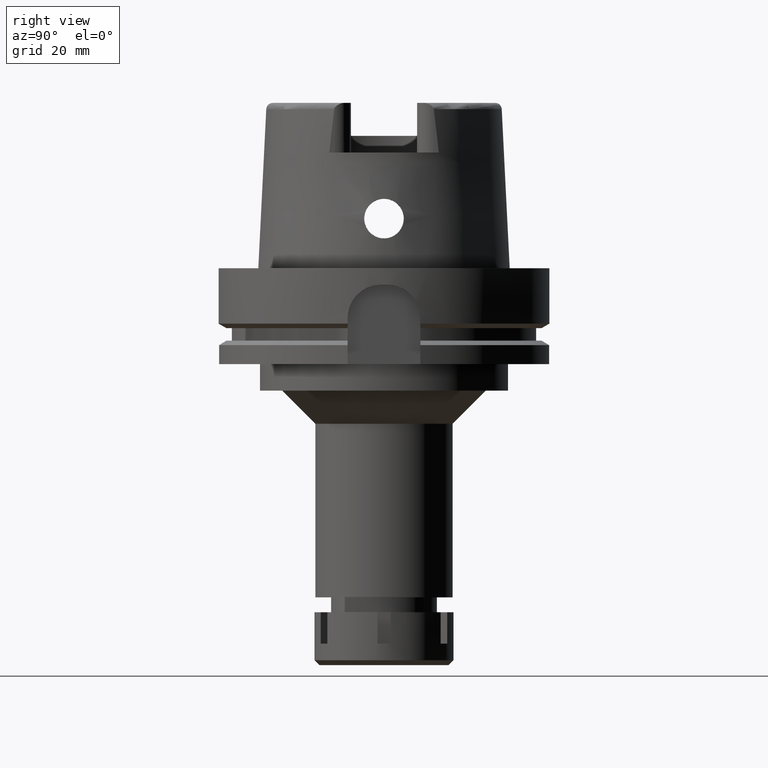
[diagram: clean part render]
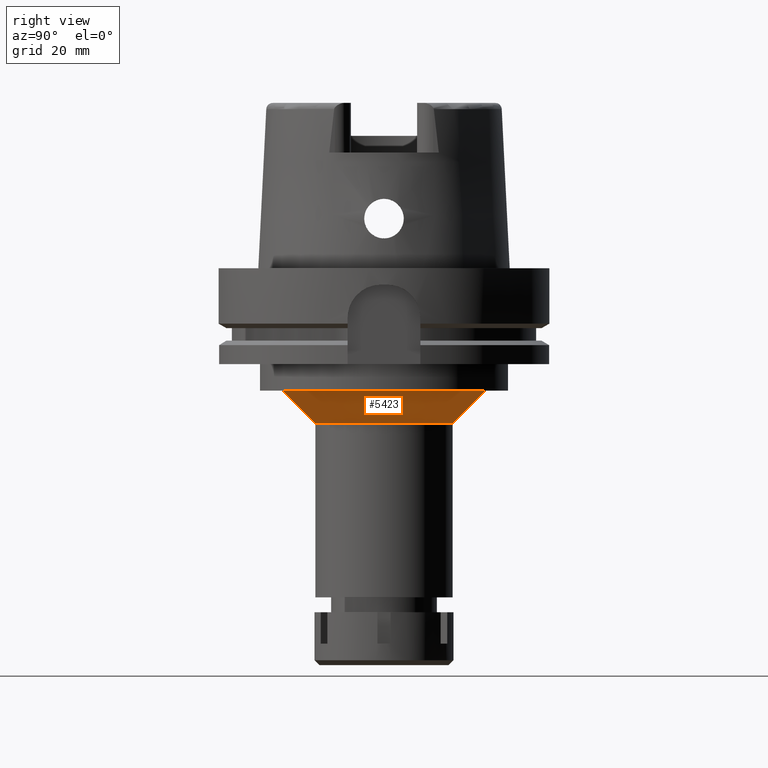
[diagram: same view with one face highlighted and labeled with its STEP entity id]
A machine part, right view. The second image highlights one B-rep face of the part: STEP entity #5423.
In plain terms, the highlighted conical surface has half-angle 45 deg.
Its self-contained STEP definition (entity closure, byte-faithful):
#121 = VERTEX_POINT ( 'NONE', #4964 ) ;
#230 = CARTESIAN_POINT ( 'NONE',  ( 0.0000000000000000000, 0.0000000000000000000, -47.00000000000000000 ) ) ;
#377 = FACE_OUTER_BOUND ( 'NONE', #5905, .T. ) ;
#592 = AXIS2_PLACEMENT_3D ( 'NONE', #230, #3459, #4463 ) ;
#706 = VERTEX_POINT ( 'NONE', #1777 ) ;
#751 = CONICAL_SURFACE ( 'NONE', #4189, 25.75000000000000000, 0.7853981633972997312 ) ;
#823 = ORIENTED_EDGE ( 'NONE', *, *, #846, .F. ) ;
#846 = EDGE_CURVE ( 'NONE', #121, #706, #3256, .T. ) ;
#1769 = DIRECTION ( 'NONE',  ( 0.0000000000000000000, 0.0000000000000000000, -1.000000000000000000 ) ) ;
#1777 = CARTESIAN_POINT ( 'NONE',  ( 0.0000000000000000000, 20.75000000000000000, -47.00000000000000000 ) ) ;
#1894 = DIRECTION ( 'NONE',  ( 0.0000000000000000000, 0.7071067811865474617, -0.7071067811865474617 ) ) ;
#2175 = CIRCLE ( 'NONE', #592, 20.75000000000000000 ) ;
#2229 = ORIENTED_EDGE ( 'NONE', *, *, #3192, .F. ) ;
#2252 = CARTESIAN_POINT ( 'NONE',  ( 0.0000000000000000000, 0.0000000000000000000, -42.00000000000000000 ) ) ;
#2295 = EDGE_CURVE ( 'NONE', #5117, #5760, #3820, .T. ) ;
#2420 = CARTESIAN_POINT ( 'NONE',  ( 0.0000000000000000000, 30.75000000000000000, -37.00000000000000000 ) ) ;
#2519 = CARTESIAN_POINT ( 'NONE',  ( 0.0000000000000000000, -20.75000000000000000, -47.00000000000000000 ) ) ;
#3192 = EDGE_CURVE ( 'NONE', #706, #5760, #2175, .T. ) ;
#3212 = AXIS2_PLACEMENT_3D ( 'NONE', #5969, #1769, #3220 ) ;
#3220 = DIRECTION ( 'NONE',  ( 0.0000000000000000000, 1.000000000000000000, 0.0000000000000000000 ) ) ;
#3256 = LINE ( 'NONE', #2420, #4653 ) ;
#3459 = DIRECTION ( 'NONE',  ( 0.0000000000000000000, 0.0000000000000000000, -1.000000000000000000 ) ) ;
#3737 = DIRECTION ( 'NONE',  ( 0.0000000000000000000, -0.7071067811865474617, -0.7071067811865474617 ) ) ;
#3820 = LINE ( 'NONE', #4257, #4601 ) ;
#4189 = AXIS2_PLACEMENT_3D ( 'NONE', #2252, #5529, #5406 ) ;
#4257 = CARTESIAN_POINT ( 'NONE',  ( 0.0000000000000000000, -30.75000000000000000, -37.00000000000000000 ) ) ;
#4463 = DIRECTION ( 'NONE',  ( 0.0000000000000000000, 1.000000000000000000, 0.0000000000000000000 ) ) ;
#4601 = VECTOR ( 'NONE', #1894, 1000.000000000000114 ) ;
#4653 = VECTOR ( 'NONE', #3737, 1000.000000000000114 ) ;
#4670 = ORIENTED_EDGE ( 'NONE', *, *, #2295, .T. ) ;
#4878 = EDGE_CURVE ( 'NONE', #121, #5117, #5650, .T. ) ;
#4889 = CARTESIAN_POINT ( 'NONE',  ( 0.0000000000000000000, -30.75000000000000000, -37.00000000000000000 ) ) ;
#4964 = CARTESIAN_POINT ( 'NONE',  ( 0.0000000000000000000, 30.75000000000000000, -37.00000000000000000 ) ) ;
#5117 = VERTEX_POINT ( 'NONE', #4889 ) ;
#5406 = DIRECTION ( 'NONE',  ( 0.0000000000000000000, 1.000000000000000000, 0.0000000000000000000 ) ) ;
#5423 = ADVANCED_FACE ( 'NONE', ( #377 ), #751, .T. ) ;
#5529 = DIRECTION ( 'NONE',  ( 0.0000000000000000000, 0.0000000000000000000, 1.000000000000000000 ) ) ;
#5650 = CIRCLE ( 'NONE', #3212, 30.75000000000000000 ) ;
#5760 = VERTEX_POINT ( 'NONE', #2519 ) ;
#5859 = ORIENTED_EDGE ( 'NONE', *, *, #4878, .T. ) ;
#5905 = EDGE_LOOP ( 'NONE', ( #5859, #4670, #2229, #823 ) ) ;
#5969 = CARTESIAN_POINT ( 'NONE',  ( 0.0000000000000000000, 0.0000000000000000000, -37.00000000000000000 ) ) ;